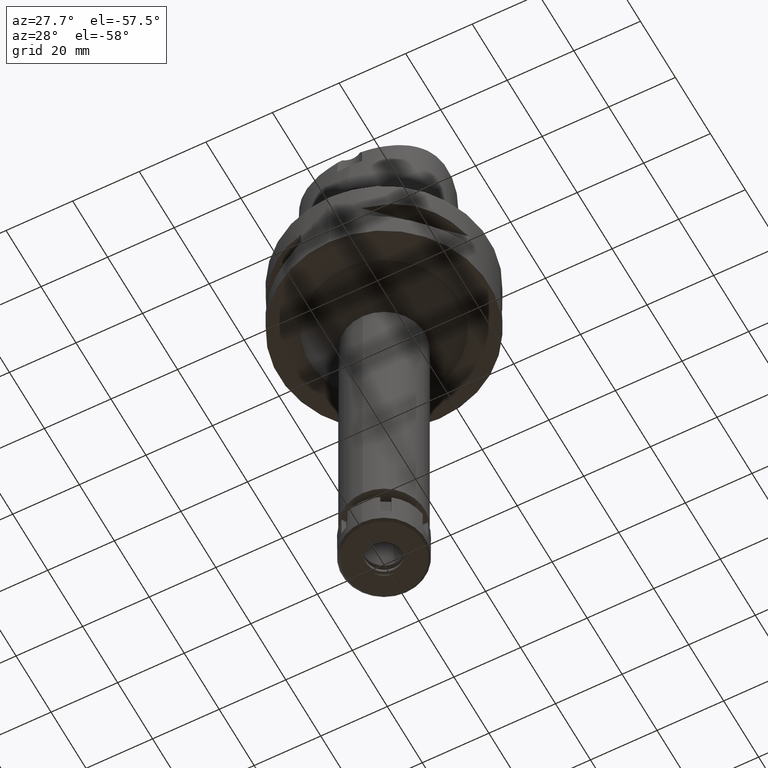
[diagram: clean part render]
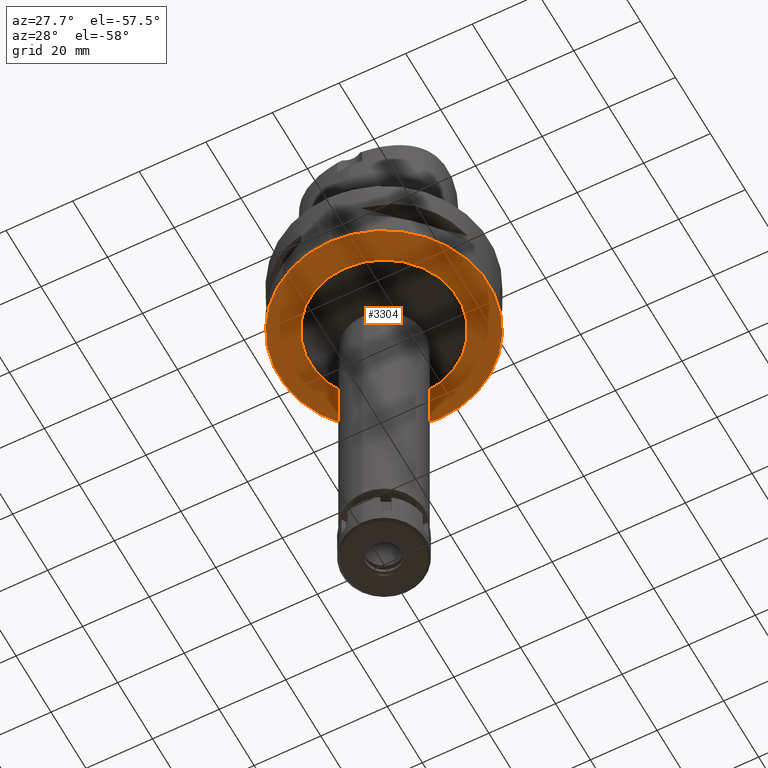
[diagram: same view with one face highlighted and labeled with its STEP entity id]
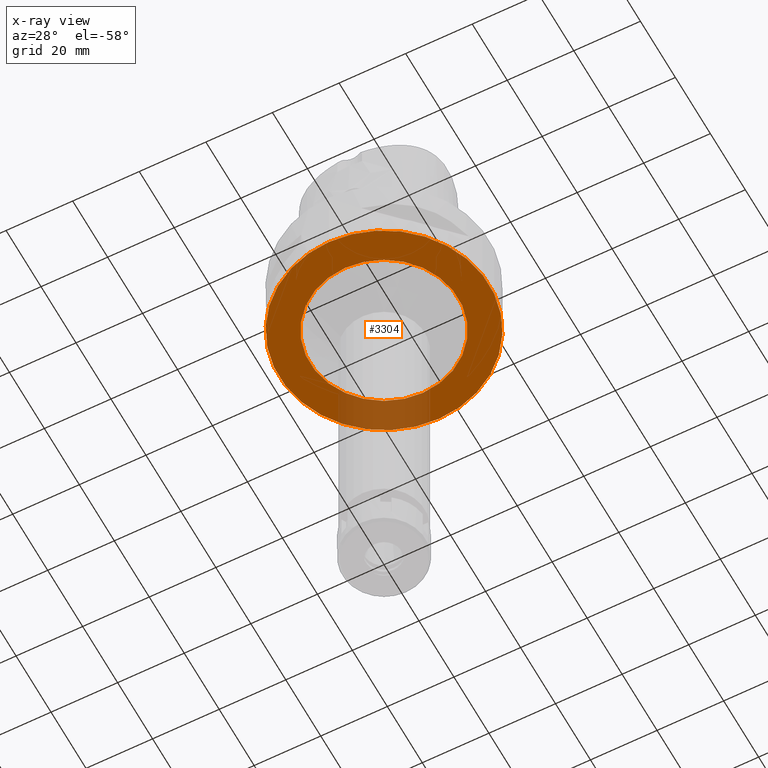
[diagram: x-ray of the same camera — body ghosted, the highlighted face saturated]
A machine part, auxiliary view. The second image highlights one B-rep face of the part: STEP entity #3304.
The next image is the same camera in x-ray: the body ghosted, the highlighted face saturated — about 15% of this face is hidden behind the body in this view.
In plain terms, the highlighted planar face has unit normal (0, 0, -1).
Its self-contained STEP definition (entity closure, byte-faithful):
#147 = ORIENTED_EDGE ( 'NONE', *, *, #441, .F. ) ;
#207 = CARTESIAN_POINT ( 'NONE',  ( 0.0000000000000000000, 0.0000000000000000000, -22.00000000000000000 ) ) ;
#441 = EDGE_CURVE ( 'NONE', #1919, #567, #3627, .T. ) ;
#451 = ORIENTED_EDGE ( 'NONE', *, *, #2653, .F. ) ;
#567 = VERTEX_POINT ( 'NONE', #1766 ) ;
#587 = DIRECTION ( 'NONE',  ( 0.0000000000000000000, -1.000000000000000000, 0.0000000000000000000 ) ) ;
#648 = CARTESIAN_POINT ( 'NONE',  ( 0.0000000000000000000, 0.0000000000000000000, -22.00000000000000000 ) ) ;
#649 = CARTESIAN_POINT ( 'NONE',  ( 0.0000000000000000000, 1.303636517692000002E-14, -22.00000000000000000 ) ) ;
#1073 = DIRECTION ( 'NONE',  ( 0.0000000000000000000, 0.0000000000000000000, 1.000000000000000000 ) ) ;
#1100 = DIRECTION ( 'NONE',  ( 0.0000000000000000000, 1.000000000000000000, 0.0000000000000000000 ) ) ;
#1424 = PLANE ( 'NONE',  #2487 ) ;
#1451 = DIRECTION ( 'NONE',  ( 0.0000000000000000000, 0.0000000000000000000, -1.000000000000000000 ) ) ;
#1576 = AXIS2_PLACEMENT_3D ( 'NONE', #4231, #2081, #1100 ) ;
#1766 = CARTESIAN_POINT ( 'NONE',  ( 0.0000000000000000000, 31.50000000000000000, -22.00000000000000000 ) ) ;
#1919 = VERTEX_POINT ( 'NONE', #3517 ) ;
#2081 = DIRECTION ( 'NONE',  ( 0.0000000000000000000, 0.0000000000000000000, 1.000000000000000000 ) ) ;
#2109 = CIRCLE ( 'NONE', #1576, 31.50000000000000000 ) ;
#2269 = VERTEX_POINT ( 'NONE', #3322 ) ;
#2333 = FACE_BOUND ( 'NONE', #5050, .T. ) ;
#2353 = ORIENTED_EDGE ( 'NONE', *, *, #2994, .F. ) ;
#2405 = DIRECTION ( 'NONE',  ( 0.0000000000000000000, 1.000000000000000000, 0.0000000000000000000 ) ) ;
#2487 = AXIS2_PLACEMENT_3D ( 'NONE', #207, #1451, #5366 ) ;
#2653 = EDGE_CURVE ( 'NONE', #4639, #2269, #3557, .T. ) ;
#2734 = AXIS2_PLACEMENT_3D ( 'NONE', #649, #1073, #4406 ) ;
#2994 = EDGE_CURVE ( 'NONE', #567, #1919, #2109, .T. ) ;
#3127 = FACE_OUTER_BOUND ( 'NONE', #3170, .T. ) ;
#3170 = EDGE_LOOP ( 'NONE', ( #2353, #147 ) ) ;
#3204 = AXIS2_PLACEMENT_3D ( 'NONE', #4451, #4400, #587 ) ;
#3304 = ADVANCED_FACE ( 'NONE', ( #3127, #2333 ), #1424, .T. ) ;
#3322 = CARTESIAN_POINT ( 'NONE',  ( 0.0000000000000000000, 22.25000000000000000, -22.00000000000000000 ) ) ;
#3517 = CARTESIAN_POINT ( 'NONE',  ( 0.0000000000000000000, -31.50000000000000000, -22.00000000000000000 ) ) ;
#3557 = CIRCLE ( 'NONE', #3204, 22.25000000000000000 ) ;
#3564 = CIRCLE ( 'NONE', #4647, 22.25000000000000000 ) ;
#3627 = CIRCLE ( 'NONE', #2734, 31.50000000000000000 ) ;
#4231 = CARTESIAN_POINT ( 'NONE',  ( 0.0000000000000000000, 1.303636517692000002E-14, -22.00000000000000000 ) ) ;
#4274 = DIRECTION ( 'NONE',  ( 0.0000000000000000000, 0.0000000000000000000, -1.000000000000000000 ) ) ;
#4400 = DIRECTION ( 'NONE',  ( 0.0000000000000000000, 0.0000000000000000000, -1.000000000000000000 ) ) ;
#4406 = DIRECTION ( 'NONE',  ( 0.0000000000000000000, -1.000000000000000000, 0.0000000000000000000 ) ) ;
#4451 = CARTESIAN_POINT ( 'NONE',  ( 0.0000000000000000000, 0.0000000000000000000, -22.00000000000000000 ) ) ;
#4639 = VERTEX_POINT ( 'NONE', #5492 ) ;
#4647 = AXIS2_PLACEMENT_3D ( 'NONE', #648, #4274, #2405 ) ;
#5050 = EDGE_LOOP ( 'NONE', ( #5447, #451 ) ) ;
#5366 = DIRECTION ( 'NONE',  ( 0.0000000000000000000, -1.000000000000000000, 0.0000000000000000000 ) ) ;
#5447 = ORIENTED_EDGE ( 'NONE', *, *, #5459, .F. ) ;
#5459 = EDGE_CURVE ( 'NONE', #2269, #4639, #3564, .T. ) ;
#5492 = CARTESIAN_POINT ( 'NONE',  ( 0.0000000000000000000, -22.25000000000000000, -22.00000000000000000 ) ) ;